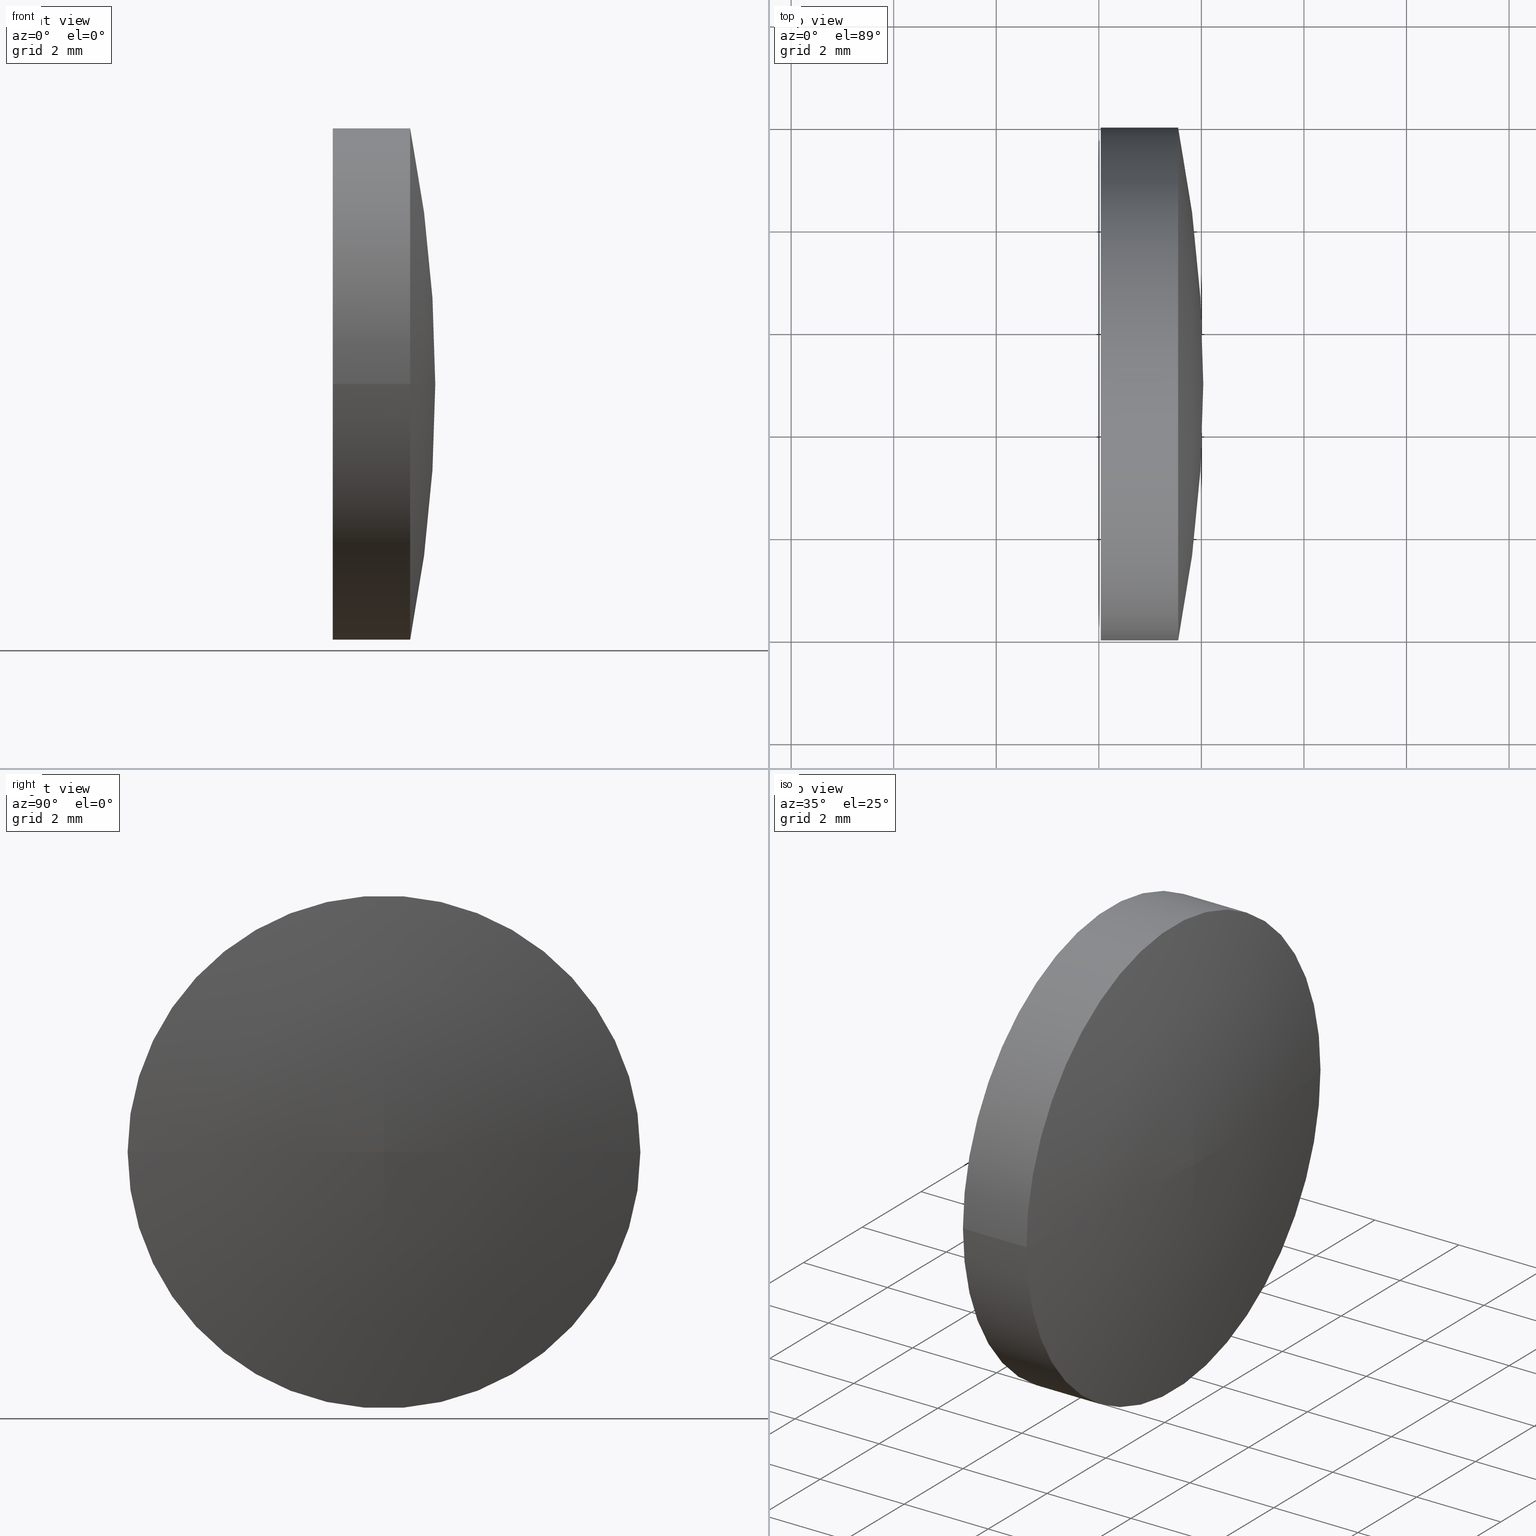
[diagram: canonical four-view strip — front | top / right | iso, engineering-drawing reading convention]
A machine part, canonical four-view strip (front | top / right | iso — engineering-drawing reading convention). The complete STEP part file that produces these views, byte-faithful:
ISO-10303-21;
HEADER;
FILE_DESCRIPTION (( 'STEP AP214' ),
    '1' );
FILE_NAME ('100020.STEP',
    '2019-04-19T08:23:44',
    ( '' ),
    ( '' ),
    'SwSTEP 2.0',
    'SolidWorks 2016',
    '' );
FILE_SCHEMA (( 'AUTOMOTIVE_DESIGN' ));
ENDSEC;

DATA;
#1 =( LENGTH_UNIT ( ) NAMED_UNIT ( * ) SI_UNIT ( .MILLI., .METRE. ) );
#2 = FILL_AREA_STYLE ('',( #69 ) ) ;
#3 =( NAMED_UNIT ( * ) SI_UNIT ( $, .STERADIAN. ) SOLID_ANGLE_UNIT ( ) );
#4 = AXIS2_PLACEMENT_3D ( 'NONE', #17, #152, #94 ) ;
#5 = AXIS2_PLACEMENT_3D ( 'NONE', #110, #122, #131 ) ;
#6 = ORIENTED_EDGE ( 'NONE', *, *, #158, .T. ) ;
#7 = CARTESIAN_POINT ( 'NONE',  ( 898.0368167638556500, 346.9456152505001700, 0.0000000000000000000 ) ) ;
#8 = PRODUCT ( '100020', '100020', '', ( #166 ) ) ;
#9 = UNCERTAINTY_MEASURE_WITH_UNIT (LENGTH_MEASURE( 1.000000000000000100E-005 ), #1, 'distance_accuracy_value', 'NONE');
#10 = DIRECTION ( 'NONE',  ( 1.000000000000000000, 1.665334536937733300E-013, -0.0000000000000000000 ) ) ;
#11 = FACE_OUTER_BOUND ( 'NONE', #29, .T. ) ;
#12 = CARTESIAN_POINT ( 'NONE',  ( 872.2850364027236800, 346.9452797258829300, 4.108991433410919200E-020 ) ) ;
#13 =( GEOMETRIC_REPRESENTATION_CONTEXT ( 3 ) GLOBAL_UNCERTAINTY_ASSIGNED_CONTEXT ( ( #78 ) ) GLOBAL_UNIT_ASSIGNED_CONTEXT ( ( #26, #139, #3 ) ) REPRESENTATION_CONTEXT ( 'NONE', 'WORKASPACE' ) );
#14 = FACE_OUTER_BOUND ( 'NONE', #95, .T. ) ;
#15 = APPLICATION_CONTEXT ( 'automotive_design' ) ;
#16 = SURFACE_STYLE_USAGE ( .BOTH. , #19 ) ;
#17 = CARTESIAN_POINT ( 'NONE',  ( 0.0000000000000000000, 0.0000000000000000000, 0.0000000000000000000 ) ) ;
#18 = EDGE_CURVE ( 'NONE', #59, #82, #20, .T. ) ;
#19 = SURFACE_SIDE_STYLE ('',( #117 ) ) ;
#20 = CIRCLE ( 'NONE', #38, 25.75178036331771000 ) ;
#21 = ORIENTED_EDGE ( 'NONE', *, *, #104, .F. ) ;
#22 = PRESENTATION_STYLE_ASSIGNMENT (( #67 ) ) ;
#23 = ORIENTED_EDGE ( 'NONE', *, *, #150, .T. ) ;
#24 = EDGE_CURVE ( 'NONE', #127, #59, #107, .T. ) ;
#25 = TOROIDAL_SURFACE ( 'NONE', #48, 0.0003355246129963153000, 25.75178036331766400 ) ;
#26 =( LENGTH_UNIT ( ) NAMED_UNIT ( * ) SI_UNIT ( .MILLI., .METRE. ) );
#27 = SHAPE_DEFINITION_REPRESENTATION ( #116, #90 ) ;
#28 = STYLED_ITEM ( 'NONE', ( #58 ), #90 ) ;
#29 = EDGE_LOOP ( 'NONE', ( #121, #45, #88 ) ) ;
#30 = CARTESIAN_POINT ( 'NONE',  ( 896.0368167638563400, 346.9456152504998300, 0.0000000000000000000 ) ) ;
#31 = CYLINDRICAL_SURFACE ( 'NONE', #115, 4.999999999999893400 ) ;
#32 = DIRECTION ( 'NONE',  ( 0.0000000000000000000, -1.000000000000000000, 1.224646799147353500E-016 ) ) ;
#33 = AXIS2_PLACEMENT_3D ( 'NONE', #120, #96, #51 ) ;
#34 = PRODUCT_DEFINITION ( 'δ֪', '', #76, #98 ) ;
#35 = ORIENTED_EDGE ( 'NONE', *, *, #77, .F. ) ;
#36 = ADVANCED_FACE ( 'NONE', ( #11 ), #25, .T. ) ;
#37 = SURFACE_SIDE_STYLE ('',( #74 ) ) ;
#38 = AXIS2_PLACEMENT_3D ( 'NONE', #41, #133, #42 ) ;
#39 = FILL_AREA_STYLE ('',( #81 ) ) ;
#40 = DIRECTION ( 'NONE',  ( 1.000000000000000000, 1.665334536937733300E-013, -0.0000000000000000000 ) ) ;
#41 = CARTESIAN_POINT ( 'NONE',  ( 872.2850364027236800, 346.9459507751088800, 0.0000000000000000000 ) ) ;
#42 = DIRECTION ( 'NONE',  ( -1.000000000000000000, 0.0000000000000000000, 0.0000000000000000000 ) ) ;
#43 = DIRECTION ( 'NONE',  ( -1.776356839400249000E-013, 1.000000000000000000, 0.0000000000000000000 ) ) ;
#44 = CIRCLE ( 'NONE', #5, 4.999999999999726400 ) ;
#45 = ORIENTED_EDGE ( 'NONE', *, *, #104, .T. ) ;
#46 = COLOUR_RGB ( '',1.000000000000000000, 1.000000000000000000, 1.000000000000000000 ) ;
#47 = ADVANCED_FACE ( 'NONE', ( #165 ), #31, .T. ) ;
#48 = AXIS2_PLACEMENT_3D ( 'NONE', #145, #101, #135 ) ;
#49 = VECTOR ( 'NONE', #151, 1000.000000000000000 ) ;
#50 =( NAMED_UNIT ( * ) PLANE_ANGLE_UNIT ( ) SI_UNIT ( $, .RADIAN. ) );
#51 = DIRECTION ( 'NONE',  ( -1.554312234475252200E-013, 1.000000000000000000, 0.0000000000000000000 ) ) ;
#52 =( NAMED_UNIT ( * ) PLANE_ANGLE_UNIT ( ) SI_UNIT ( $, .RADIAN. ) );
#53 = ORIENTED_EDGE ( 'NONE', *, *, #158, .F. ) ;
#54 = CARTESIAN_POINT ( 'NONE',  ( 897.5468167638563300, 346.9456152505001100, 0.0000000000000000000 ) ) ;
#55 = CARTESIAN_POINT ( 'NONE',  ( 898.0368167638563400, 341.9456152505002800, 6.123233995736601600E-016 ) ) ;
#56 = CIRCLE ( 'NONE', #132, 5.000000000000004400 ) ;
#57 = EDGE_LOOP ( 'NONE', ( #136, #23, #70, #144 ) ) ;
#58 = PRESENTATION_STYLE_ASSIGNMENT (( #16 ) ) ;
#59 = VERTEX_POINT ( 'NONE', #89 ) ;
#60 = DIRECTION ( 'NONE',  ( 1.000000000000000000, 1.665334536937733300E-013, -0.0000000000000000000 ) ) ;
#61 = AXIS2_PLACEMENT_3D ( 'NONE', #12, #114, #32 ) ;
#62 = CARTESIAN_POINT ( 'NONE',  ( 898.0368167638548600, 351.9456152505000500, 0.0000000000000000000 ) ) ;
#63 = EDGE_CURVE ( 'NONE', #127, #163, #102, .T. ) ;
#64 = STYLED_ITEM ( 'NONE', ( #22 ), #154 ) ;
#65 = VERTEX_POINT ( 'NONE', #71 ) ;
#66 = CARTESIAN_POINT ( 'NONE',  ( 896.0368167638560000, 346.9456152504998300, 0.0000000000000000000 ) ) ;
#67 = SURFACE_STYLE_USAGE ( .BOTH. , #37 ) ;
#68 = AXIS2_PLACEMENT_3D ( 'NONE', #103, #75, #164 ) ;
#69 = FILL_AREA_STYLE_COLOUR ( '', #46 ) ;
#70 = ORIENTED_EDGE ( 'NONE', *, *, #130, .F. ) ;
#71 = CARTESIAN_POINT ( 'NONE',  ( 897.5468167638571200, 341.9456152505001100, 6.123233995736743600E-016 ) ) ;
#72 = CARTESIAN_POINT ( 'NONE',  ( 898.0368167638556500, 346.9456152505001700, 0.0000000000000000000 ) ) ;
#73 =( GEOMETRIC_REPRESENTATION_CONTEXT ( 3 ) GLOBAL_UNCERTAINTY_ASSIGNED_CONTEXT ( ( #9 ) ) GLOBAL_UNIT_ASSIGNED_CONTEXT ( ( #1, #52, #97 ) ) REPRESENTATION_CONTEXT ( 'NONE', 'WORKASPACE' ) );
#74 = SURFACE_STYLE_FILL_AREA ( #39 ) ;
#75 = DIRECTION ( 'NONE',  ( 1.000000000000000000, 1.665334536937733300E-013, -0.0000000000000000000 ) ) ;
#76 = PRODUCT_DEFINITION_FORMATION_WITH_SPECIFIED_SOURCE ( '�κ�', '', #8, .NOT_KNOWN. ) ;
#77 = EDGE_CURVE ( 'NONE', #163, #127, #56, .T. ) ;
#78 = UNCERTAINTY_MEASURE_WITH_UNIT (LENGTH_MEASURE( 1.000000000000000100E-005 ), #26, 'distance_accuracy_value', 'NONE');
#79 = COLOUR_RGB ( '',1.000000000000000000, 1.000000000000000000, 1.000000000000000000 ) ;
#80 = ORIENTED_EDGE ( 'NONE', *, *, #63, .F. ) ;
#81 = FILL_AREA_STYLE_COLOUR ( '', #79 ) ;
#82 = VERTEX_POINT ( 'NONE', #7 ) ;
#83 =( NAMED_UNIT ( * ) SI_UNIT ( $, .STERADIAN. ) SOLID_ANGLE_UNIT ( ) );
#84 = VECTOR ( 'NONE', #10, 1000.000000000000000 ) ;
#85 = PLANE ( 'NONE',  #134 ) ;
#86 = DIRECTION ( 'NONE',  ( -1.776356839400249000E-013, 1.000000000000000000, 0.0000000000000000000 ) ) ;
#87 = CIRCLE ( 'NONE', #61, 25.75178036331765700 ) ;
#88 = ORIENTED_EDGE ( 'NONE', *, *, #18, .F. ) ;
#89 = CARTESIAN_POINT ( 'NONE',  ( 897.5468167638555300, 351.9456152505000500, 0.0000000000000000000 ) ) ;
#90 = ADVANCED_BREP_SHAPE_REPRESENTATION ( '100020', ( #154, #4 ), #141 ) ;
#91 = EDGE_LOOP ( 'NONE', ( #100, #123, #126, #53 ) ) ;
#92 = ORIENTED_EDGE ( 'NONE', *, *, #18, .T. ) ;
#93 = PRESENTATION_LAYER_ASSIGNMENT (  '', '', ( #28 ) ) ;
#94 = DIRECTION ( 'NONE',  ( 1.000000000000000000, 0.0000000000000000000, 0.0000000000000000000 ) ) ;
#95 = EDGE_LOOP ( 'NONE', ( #80, #35 ) ) ;
#96 = DIRECTION ( 'NONE',  ( 1.000000000000000000, 1.665334536937733300E-013, -0.0000000000000000000 ) ) ;
#97 =( NAMED_UNIT ( * ) SI_UNIT ( $, .STERADIAN. ) SOLID_ANGLE_UNIT ( ) );
#98 = PRODUCT_DEFINITION_CONTEXT ( 'detailed design', #15, 'design' ) ;
#99 = TOROIDAL_SURFACE ( 'NONE', #68, 0.0003355246129963153000, 25.75178036331766400 ) ;
#100 = ORIENTED_EDGE ( 'NONE', *, *, #150, .F. ) ;
#101 = DIRECTION ( 'NONE',  ( 1.000000000000000000, 1.665334536937733300E-013, -0.0000000000000000000 ) ) ;
#102 = CIRCLE ( 'NONE', #118, 5.000000000000004400 ) ;
#103 = CARTESIAN_POINT ( 'NONE',  ( 872.2850364027236800, 346.9456152504959100, 0.0000000000000000000 ) ) ;
#104 = EDGE_CURVE ( 'NONE', #65, #82, #87, .T. ) ;
#105 = FACE_OUTER_BOUND ( 'NONE', #143, .T. ) ;
#106 = ADVANCED_FACE ( 'NONE', ( #105 ), #99, .T. ) ;
#107 = LINE ( 'NONE', #62, #84 ) ;
#108 = APPLICATION_PROTOCOL_DEFINITION ( 'draft international standard', 'automotive_design', 1998, #15 ) ;
#109 = APPLICATION_PROTOCOL_DEFINITION ( 'draft international standard', 'automotive_design', 1998, #111 ) ;
#110 = CARTESIAN_POINT ( 'NONE',  ( 897.5468167638563300, 346.9456152505001100, 0.0000000000000000000 ) ) ;
#111 = APPLICATION_CONTEXT ( 'automotive_design' ) ;
#112 = CIRCLE ( 'NONE', #160, 4.999999999999726400 ) ;
#113 = DIRECTION ( 'NONE',  ( -1.554312234475252200E-013, 1.000000000000000000, 0.0000000000000000000 ) ) ;
#114 = DIRECTION ( 'NONE',  ( -2.039446610170334800E-029, 1.224646799147353200E-016, 1.000000000000000000 ) ) ;
#115 = AXIS2_PLACEMENT_3D ( 'NONE', #72, #161, #113 ) ;
#116 = PRODUCT_DEFINITION_SHAPE ( 'NONE', 'NONE',  #34 ) ;
#117 = SURFACE_STYLE_FILL_AREA ( #2 ) ;
#118 = AXIS2_PLACEMENT_3D ( 'NONE', #125, #157, #86 ) ;
#119 = DIRECTION ( 'NONE',  ( 1.665334536937733300E-013, -1.000000000000000000, 0.0000000000000000000 ) ) ;
#120 = CARTESIAN_POINT ( 'NONE',  ( 898.0368167638556500, 346.9456152505001700, 0.0000000000000000000 ) ) ;
#121 = ORIENTED_EDGE ( 'NONE', *, *, #130, .T. ) ;
#122 = DIRECTION ( 'NONE',  ( 1.000000000000000000, 1.665334536937733300E-013, -0.0000000000000000000 ) ) ;
#123 = ORIENTED_EDGE ( 'NONE', *, *, #77, .T. ) ;
#124 = LINE ( 'NONE', #55, #49 ) ;
#125 = CARTESIAN_POINT ( 'NONE',  ( 896.0368167638563400, 346.9456152504998300, 0.0000000000000000000 ) ) ;
#126 = ORIENTED_EDGE ( 'NONE', *, *, #24, .T. ) ;
#127 = VERTEX_POINT ( 'NONE', #159 ) ;
#128 = PRESENTATION_LAYER_ASSIGNMENT (  '', '', ( #64 ) ) ;
#129 = CARTESIAN_POINT ( 'NONE',  ( 896.0368167638571300, 341.9456152504998300, 6.123233995736940800E-016 ) ) ;
#130 = EDGE_CURVE ( 'NONE', #59, #65, #44, .T. ) ;
#131 = DIRECTION ( 'NONE',  ( -1.554312234475304200E-013, 1.000000000000000000, 0.0000000000000000000 ) ) ;
#132 = AXIS2_PLACEMENT_3D ( 'NONE', #30, #60, #43 ) ;
#133 = DIRECTION ( 'NONE',  ( -0.0000000000000000000, 0.0000000000000000000, -1.000000000000000000 ) ) ;
#134 = AXIS2_PLACEMENT_3D ( 'NONE', #66, #140, #119 ) ;
#135 = DIRECTION ( 'NONE',  ( -1.665334536937733300E-013, 1.000000000000000000, 0.0000000000000000000 ) ) ;
#136 = ORIENTED_EDGE ( 'NONE', *, *, #63, .T. ) ;
#137 = ADVANCED_FACE ( 'NONE', ( #156 ), #162, .T. ) ;
#138 =( LENGTH_UNIT ( ) NAMED_UNIT ( * ) SI_UNIT ( .MILLI., .METRE. ) );
#139 =( NAMED_UNIT ( * ) PLANE_ANGLE_UNIT ( ) SI_UNIT ( $, .RADIAN. ) );
#140 = DIRECTION ( 'NONE',  ( -1.000000000000000000, -1.665334536937733300E-013, 0.0000000000000000000 ) ) ;
#141 =( GEOMETRIC_REPRESENTATION_CONTEXT ( 3 ) GLOBAL_UNCERTAINTY_ASSIGNED_CONTEXT ( ( #142 ) ) GLOBAL_UNIT_ASSIGNED_CONTEXT ( ( #138, #50, #83 ) ) REPRESENTATION_CONTEXT ( 'NONE', 'WORKASPACE' ) );
#142 = UNCERTAINTY_MEASURE_WITH_UNIT (LENGTH_MEASURE( 1.000000000000000100E-005 ), #138, 'distance_accuracy_value', 'NONE');
#143 = EDGE_LOOP ( 'NONE', ( #21, #6, #92 ) ) ;
#144 = ORIENTED_EDGE ( 'NONE', *, *, #24, .F. ) ;
#145 = CARTESIAN_POINT ( 'NONE',  ( 872.2850364027236800, 346.9456152504959100, 0.0000000000000000000 ) ) ;
#146 = PRODUCT_RELATED_PRODUCT_CATEGORY ( 'part', '', ( #8 ) ) ;
#147 = MECHANICAL_DESIGN_GEOMETRIC_PRESENTATION_REPRESENTATION (  '', ( #64 ), #73 ) ;
#148 = ADVANCED_FACE ( 'NONE', ( #14 ), #85, .T. ) ;
#149 = CLOSED_SHELL ( 'NONE', ( #137, #36, #148, #106, #47 ) ) ;
#150 = EDGE_CURVE ( 'NONE', #163, #65, #124, .T. ) ;
#151 = DIRECTION ( 'NONE',  ( 1.000000000000000000, 1.665334536937733300E-013, -0.0000000000000000000 ) ) ;
#152 = DIRECTION ( 'NONE',  ( 0.0000000000000000000, 0.0000000000000000000, 1.000000000000000000 ) ) ;
#153 = DIRECTION ( 'NONE',  ( -1.554312234475304200E-013, 1.000000000000000000, 0.0000000000000000000 ) ) ;
#154 = MANIFOLD_SOLID_BREP ( '��ת2', #149 ) ;
#155 = MECHANICAL_DESIGN_GEOMETRIC_PRESENTATION_REPRESENTATION (  '', ( #28 ), #13 ) ;
#156 = FACE_OUTER_BOUND ( 'NONE', #57, .T. ) ;
#157 = DIRECTION ( 'NONE',  ( 1.000000000000000000, 1.665334536937733300E-013, -0.0000000000000000000 ) ) ;
#158 = EDGE_CURVE ( 'NONE', #65, #59, #112, .T. ) ;
#159 = CARTESIAN_POINT ( 'NONE',  ( 896.0368167638555400, 351.9456152504998300, 0.0000000000000000000 ) ) ;
#160 = AXIS2_PLACEMENT_3D ( 'NONE', #54, #40, #153 ) ;
#161 = DIRECTION ( 'NONE',  ( 1.000000000000000000, 1.665334536937733300E-013, -0.0000000000000000000 ) ) ;
#162 = CYLINDRICAL_SURFACE ( 'NONE', #33, 4.999999999999893400 ) ;
#163 = VERTEX_POINT ( 'NONE', #129 ) ;
#164 = DIRECTION ( 'NONE',  ( -1.665334536937733300E-013, 1.000000000000000000, 0.0000000000000000000 ) ) ;
#165 = FACE_OUTER_BOUND ( 'NONE', #91, .T. ) ;
#166 = PRODUCT_CONTEXT ( 'NONE', #111, 'mechanical' ) ;
ENDSEC;
END-ISO-10303-21;
